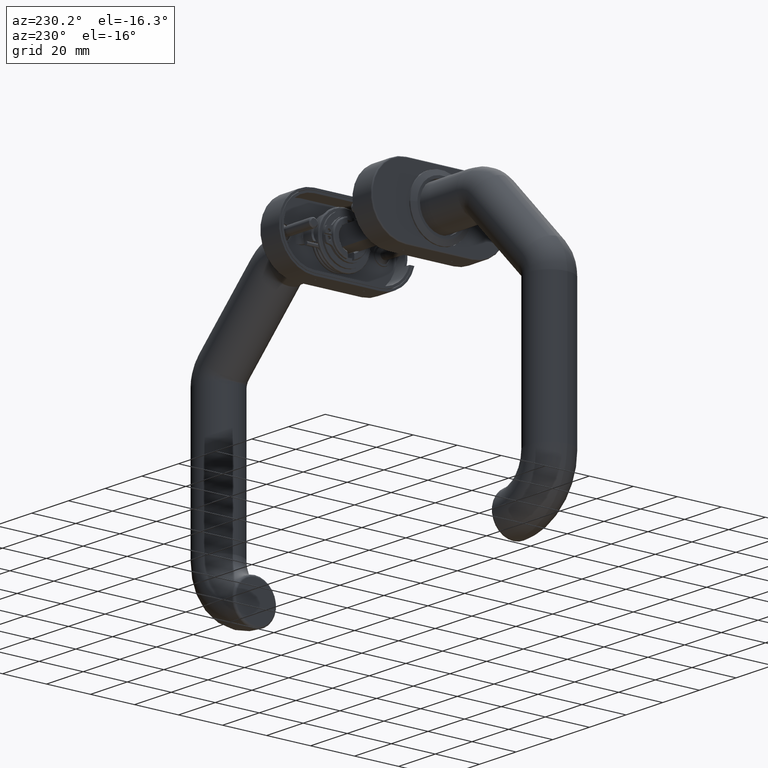
[diagram: clean part render]
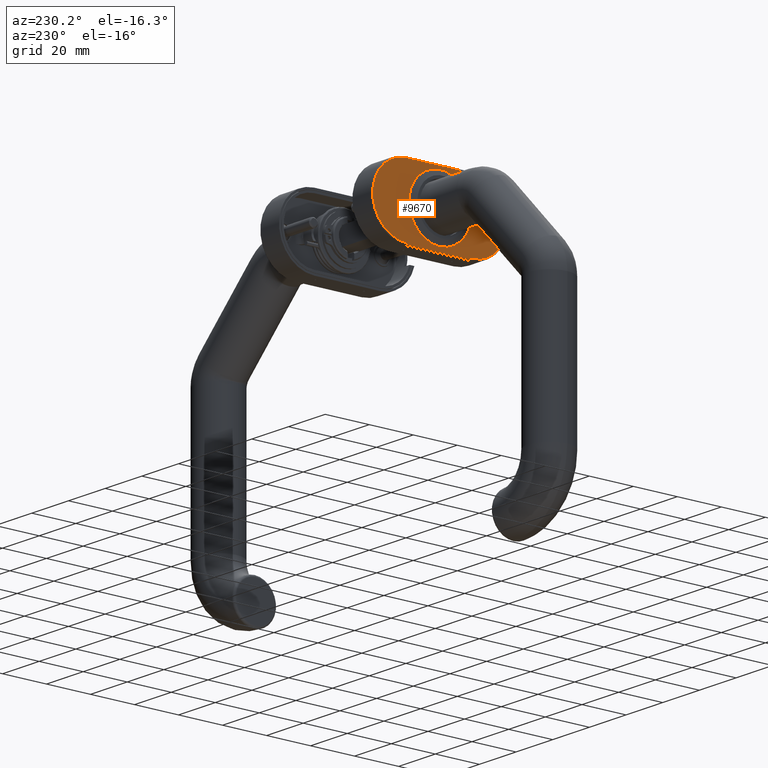
[diagram: same view with one face highlighted and labeled with its STEP entity id]
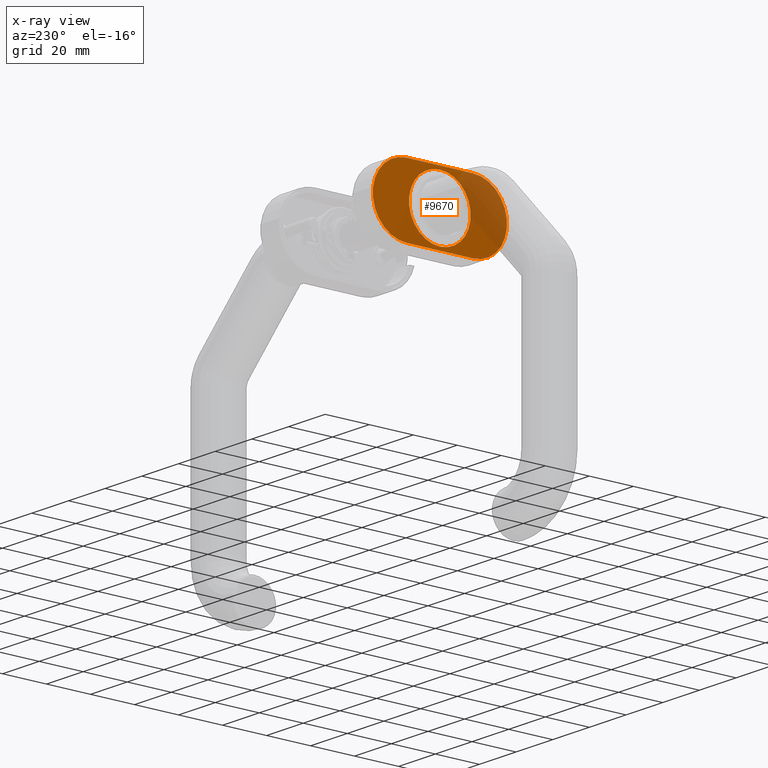
[diagram: x-ray of the same camera — body ghosted, the highlighted face saturated]
A machine part, auxiliary view. The second image highlights one B-rep face of the part: STEP entity #9670.
The next image is the same camera in x-ray: the body ghosted, the highlighted face saturated — about 32% of this face is hidden behind the body in this view.
In plain terms, the highlighted planar face has unit normal (-1, 0, -0).
Its self-contained STEP definition (entity closure, byte-faithful):
#648 = PLANE ( 'NONE',  #17413 ) ;
#884 = VECTOR ( 'NONE', #15322, 1000.000000000000000 ) ;
#888 = CARTESIAN_POINT ( 'NONE',  ( 15.50000000000001421, 14.99999999999999645, 0.000000000000000000 ) ) ;
#1441 = VECTOR ( 'NONE', #10003, 1000.000000000000000 ) ;
#2285 = ORIENTED_EDGE ( 'NONE', *, *, #14891, .F. ) ;
#2311 = VERTEX_POINT ( 'NONE', #6062 ) ;
#2381 = FACE_OUTER_BOUND ( 'NONE', #17392, .T. ) ;
#2508 = ORIENTED_EDGE ( 'NONE', *, *, #16092, .T. ) ;
#2584 = CARTESIAN_POINT ( 'NONE',  ( -15.50000000000000711, -14.99999999999999112, 0.000000000000000000 ) ) ;
#2968 = LINE ( 'NONE', #6601, #1441 ) ;
#3513 = CIRCLE ( 'NONE', #17478, 15.50000000000001421 ) ;
#3860 = CARTESIAN_POINT ( 'NONE',  ( 15.50000000000000888, -14.99999999999999289, 0.000000000000000000 ) ) ;
#4484 = ORIENTED_EDGE ( 'NONE', *, *, #15031, .T. ) ;
#4762 = CARTESIAN_POINT ( 'NONE',  ( -4.400605526280645814E-15, 14.99999999999999645, 0.000000000000000000 ) ) ;
#5208 = DIRECTION ( 'NONE',  ( 1.000000000000000000, 0.000000000000000000, 0.000000000000000000 ) ) ;
#5452 = FACE_BOUND ( 'NONE', #20165, .T. ) ;
#5628 = DIRECTION ( 'NONE',  ( 1.000000000000000000, 0.000000000000000000, -0.000000000000000000 ) ) ;
#5776 = DIRECTION ( 'NONE',  ( 1.000000000000000000, 0.000000000000000000, 0.000000000000000000 ) ) ;
#6062 = CARTESIAN_POINT ( 'NONE',  ( 14.00000000000000000, 0.000000000000000000, 0.000000000000000000 ) ) ;
#6601 = CARTESIAN_POINT ( 'NONE',  ( -15.50000000000001421, 14.99999999999999289, 0.000000000000000000 ) ) ;
#7081 = ORIENTED_EDGE ( 'NONE', *, *, #13612, .T. ) ;
#7666 = VERTEX_POINT ( 'NONE', #19423 ) ;
#7819 = CIRCLE ( 'NONE', #13653, 15.50000000000001066 ) ;
#8148 = CARTESIAN_POINT ( 'NONE',  ( 15.50000000000000888, 14.99999999999998757, 0.000000000000000000 ) ) ;
#9670 = ADVANCED_FACE ( 'NONE', ( #5452, #2381 ), #648, .T. ) ;
#10003 = DIRECTION ( 'NONE',  ( 2.312964634635745422E-16, -1.000000000000000000, 0.000000000000000000 ) ) ;
#10264 = CARTESIAN_POINT ( 'NONE',  ( -4.400605526280645814E-15, 14.99999999999999645, 0.000000000000000000 ) ) ;
#10336 = DIRECTION ( 'NONE',  ( 0.000000000000000000, 0.000000000000000000, 1.000000000000000000 ) ) ;
#12904 = DIRECTION ( 'NONE',  ( 1.000000000000000000, 0.000000000000000000, 0.000000000000000000 ) ) ;
#12946 = AXIS2_PLACEMENT_3D ( 'NONE', #18475, #19965, #5208 ) ;
#13612 = EDGE_CURVE ( 'NONE', #19620, #7666, #3513, .T. ) ;
#13653 = AXIS2_PLACEMENT_3D ( 'NONE', #20178, #17167, #5776 ) ;
#13927 = LINE ( 'NONE', #888, #884 ) ;
#14347 = DIRECTION ( 'NONE',  ( 0.000000000000000000, 0.000000000000000000, 1.000000000000000000 ) ) ;
#14891 = EDGE_CURVE ( 'NONE', #2311, #2311, #19359, .T. ) ;
#15031 = EDGE_CURVE ( 'NONE', #18040, #18428, #7819, .T. ) ;
#15322 = DIRECTION ( 'NONE',  ( 0.000000000000000000, 1.000000000000000000, 0.000000000000000000 ) ) ;
#16092 = EDGE_CURVE ( 'NONE', #7666, #18040, #2968, .T. ) ;
#17167 = DIRECTION ( 'NONE',  ( 0.000000000000000000, 0.000000000000000000, 1.000000000000000000 ) ) ;
#17392 = EDGE_LOOP ( 'NONE', ( #4484, #20384, #7081, #2508 ) ) ;
#17413 = AXIS2_PLACEMENT_3D ( 'NONE', #10264, #10336, #5628 ) ;
#17478 = AXIS2_PLACEMENT_3D ( 'NONE', #4762, #14347, #12904 ) ;
#17986 = EDGE_CURVE ( 'NONE', #18428, #19620, #13927, .T. ) ;
#18040 = VERTEX_POINT ( 'NONE', #2584 ) ;
#18428 = VERTEX_POINT ( 'NONE', #3860 ) ;
#18475 = CARTESIAN_POINT ( 'NONE',  ( 0.000000000000000000, 0.000000000000000000, 0.000000000000000000 ) ) ;
#19359 = CIRCLE ( 'NONE', #12946, 14.00000000000000000 ) ;
#19423 = CARTESIAN_POINT ( 'NONE',  ( -15.50000000000001954, 14.99999999999998401, 0.000000000000000000 ) ) ;
#19620 = VERTEX_POINT ( 'NONE', #8148 ) ;
#19965 = DIRECTION ( 'NONE',  ( 0.000000000000000000, 0.000000000000000000, 1.000000000000000000 ) ) ;
#20165 = EDGE_LOOP ( 'NONE', ( #2285 ) ) ;
#20178 = CARTESIAN_POINT ( 'NONE',  ( -2.563635327559616225E-15, -14.99999999999999289, 0.000000000000000000 ) ) ;
#20384 = ORIENTED_EDGE ( 'NONE', *, *, #17986, .T. ) ;